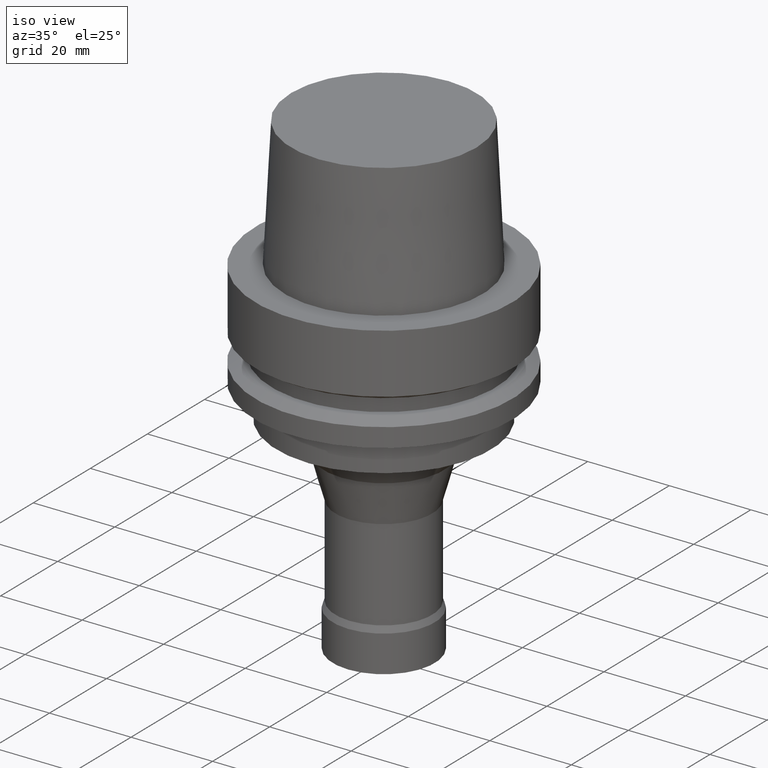
[diagram: clean part render]
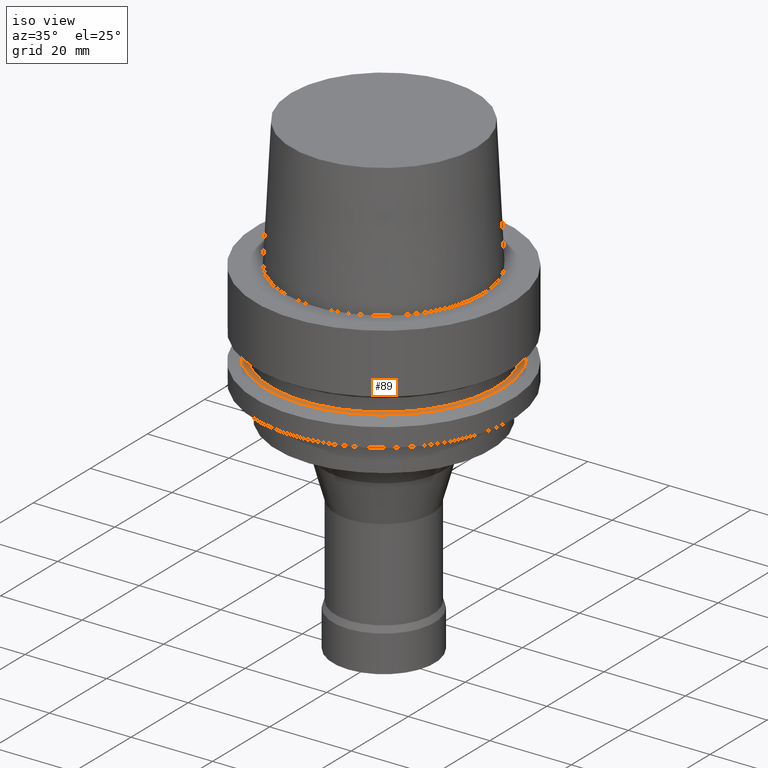
[diagram: same view with one face highlighted and labeled with its STEP entity id]
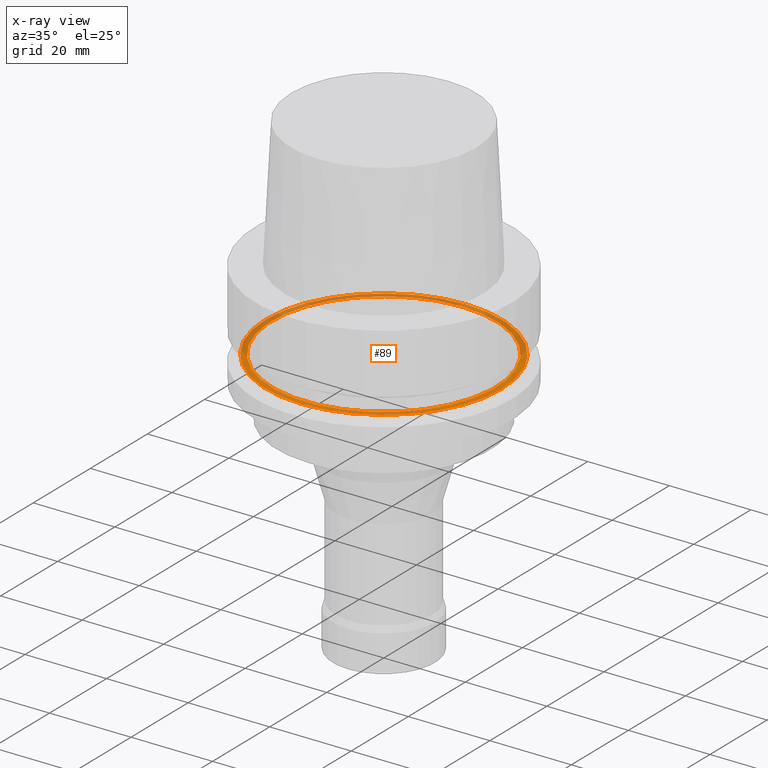
[diagram: x-ray of the same camera — body ghosted, the highlighted face saturated]
A machine part, iso view. The second image highlights one B-rep face of the part: STEP entity #89.
The next image is the same camera in x-ray: the body ghosted, the highlighted face saturated — about 49% of this face is hidden behind the body in this view.
In plain terms, the highlighted planar face has unit normal (-0, -0, 1).
Its self-contained STEP definition (entity closure, byte-faithful):
#89=ADVANCED_FACE('',(#137,#138),#139,.T.);
#137=FACE_OUTER_BOUND('',#195,.T.);
#138=FACE_BOUND('',#196,.T.);
#139=PLANE('',#197);
#195=EDGE_LOOP('',(#281));
#196=EDGE_LOOP('',(#282));
#197=AXIS2_PLACEMENT_3D('',#283,#284,#285);
#281=ORIENTED_EDGE('',*,*,#325,.F.);
#282=ORIENTED_EDGE('',*,*,#324,.T.);
#283=CARTESIAN_POINT('',(1.21699275665268E-015,28.19879763,-19.875));
#284=DIRECTION('',(-6.12323399573677E-017,-1.22464679914735E-016,1.0));
#285=DIRECTION('',(1.23259516440783E-032,-1.0,-1.22464679914735E-016));
#324=EDGE_CURVE('',#357,#357,#358,.T.);
#325=EDGE_CURVE('',#359,#359,#360,.T.);
#357=VERTEX_POINT('',#395);
#358=CIRCLE('',#396,27.5);
#359=VERTEX_POINT('',#397);
#360=CIRCLE('',#398,28.89759526);
#395=CARTESIAN_POINT('',(1.21699275665268E-015,27.5,-19.875));
#396=AXIS2_PLACEMENT_3D('',#447,#448,#449);
#397=CARTESIAN_POINT('',(1.21699275665268E-015,28.89759526,-19.875));
#398=AXIS2_PLACEMENT_3D('',#450,#451,#452);
#447=CARTESIAN_POINT('',(1.21699275665268E-015,2.43398551330536E-015,-19.875));
#448=DIRECTION('',(6.12323399573677E-017,1.22464679914735E-016,-1.0));
#449=DIRECTION('',(-1.23259516440783E-032,1.0,1.22464679914735E-016));
#450=CARTESIAN_POINT('',(1.21699275665268E-015,2.43398551330536E-015,-19.875));
#451=DIRECTION('',(6.12323399573677E-017,1.22464679914735E-016,-1.0));
#452=DIRECTION('',(-1.23259516440783E-032,1.0,1.22464679914735E-016));